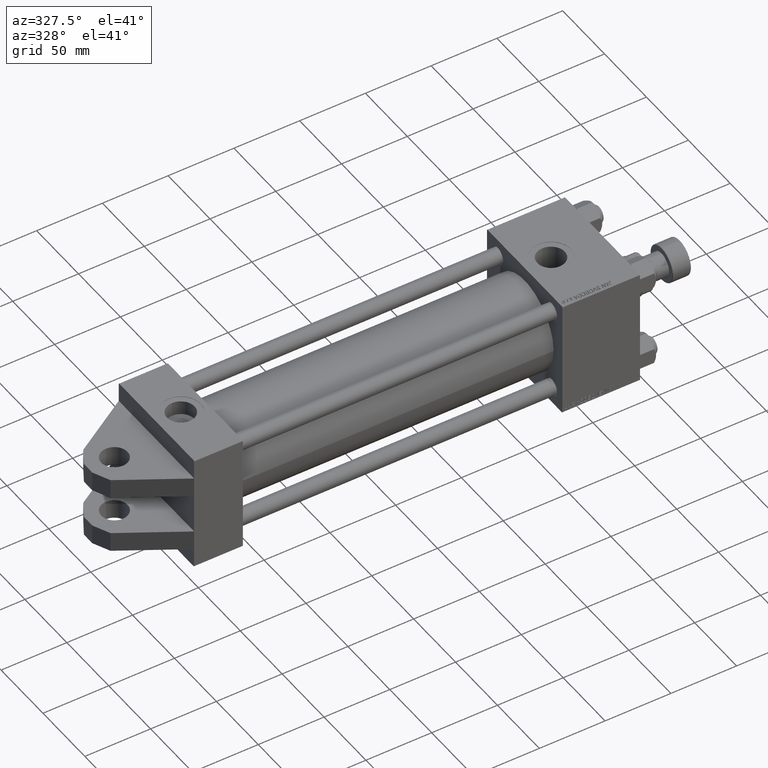
[diagram: clean part render]
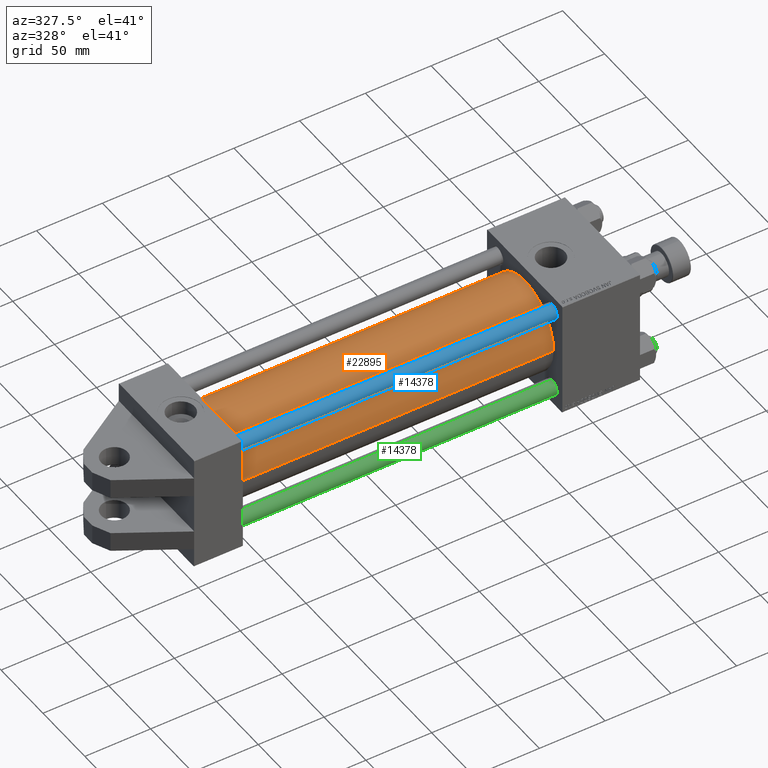
[diagram: same view with three faces highlighted in distinct colors, each labeled with its STEP entity id]
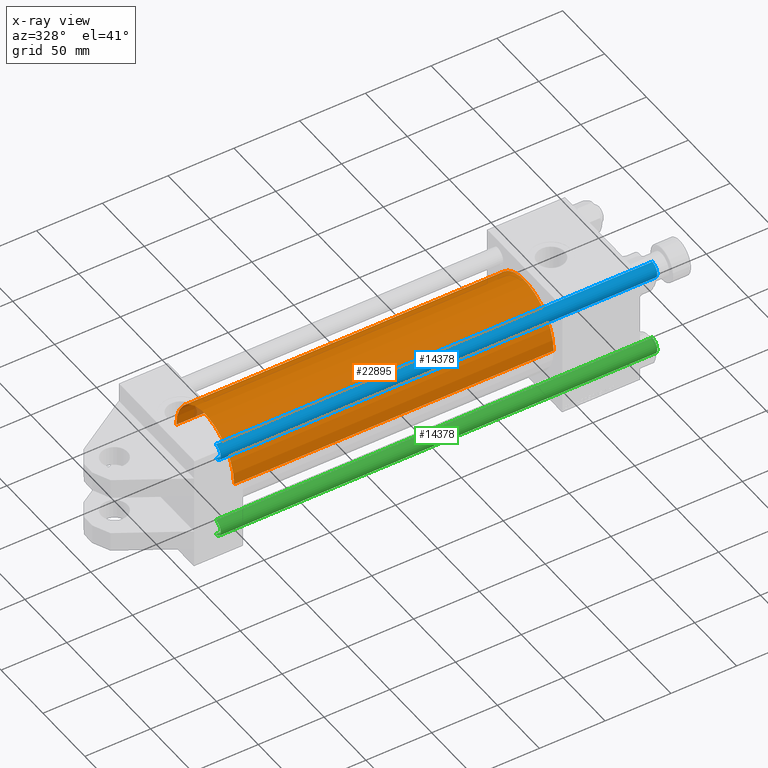
[diagram: x-ray of the same camera — body ghosted, the three highlighted faces saturated]
A machine part, auxiliary view with three faces highlighted in distinct colors.
The next image is the same camera in x-ray (body ghosted, the three faces saturated) — at least one of them is partly hidden behind the body in this view.
Their STEP definitions:

[orange] entity #22895 — the highlighted cylindrical surface (partial cylindrical patch) has radius 34.5 mm, axis along (-1, -0, 0).
#2061 = VECTOR ( 'NONE', #23170, 1000.000000000000000 ) ;
#3689 = DIRECTION ( 'NONE',  ( 1.000000000000000000, -0.000000000000000000, 0.000000000000000000 ) ) ;
#4802 = VERTEX_POINT ( 'NONE', #11994 ) ;
#6223 = ORIENTED_EDGE ( 'NONE', *, *, #50625, .F. ) ;
#8036 = VECTOR ( 'NONE', #35463, 1000.000000000000000 ) ;
#8987 = AXIS2_PLACEMENT_3D ( 'NONE', #50944, #26102, #25846 ) ;
#9993 = EDGE_LOOP ( 'NONE', ( #6223, #26014, #28369, #45645 ) ) ;
#11994 = CARTESIAN_POINT ( 'NONE',  ( 37.00000000000000711, 7.555845051047534515E-16, -34.49999999999999289 ) ) ;
#12700 = CARTESIAN_POINT ( 'NONE',  ( 279.9999999999999432, -3.469446951953614189E-15, 34.49999999999999289 ) ) ;
#13221 = DIRECTION ( 'NONE',  ( 1.000000000000000000, 0.000000000000000000, 0.000000000000000000 ) ) ;
#13951 = CYLINDRICAL_SURFACE ( 'NONE', #8987, 34.49999999999999289 ) ;
#16565 = CARTESIAN_POINT ( 'NONE',  ( 279.9999999999999432, -3.469446951953614189E-15, 34.49999999999999289 ) ) ;
#16744 = CARTESIAN_POINT ( 'NONE',  ( 37.00000000000000711, -3.469446951953614189E-15, 34.49999999999999289 ) ) ;
#19358 = CARTESIAN_POINT ( 'NONE',  ( 279.9999999999999432, 7.555845051047534515E-16, -34.49999999999999289 ) ) ;
#21078 = AXIS2_PLACEMENT_3D ( 'NONE', #39627, #3689, #51512 ) ;
#22671 = FACE_OUTER_BOUND ( 'NONE', #9993, .T. ) ;
#22895 = ADVANCED_FACE ( 'NONE', ( #22671 ), #13951, .T. ) ;
#22953 = CARTESIAN_POINT ( 'NONE',  ( 279.9999999999999432, 7.555845051047534515E-16, -34.49999999999999289 ) ) ;
#23170 = DIRECTION ( 'NONE',  ( -1.000000000000000000, -0.000000000000000000, -0.000000000000000000 ) ) ;
#23473 = CIRCLE ( 'NONE', #38607, 34.49999999999999289 ) ;
#25846 = DIRECTION ( 'NONE',  ( 0.000000000000000000, 0.000000000000000000, 1.000000000000000000 ) ) ;
#25886 = CARTESIAN_POINT ( 'NONE',  ( 279.9999999999999432, -3.469446951953614189E-15, 0.000000000000000000 ) ) ;
#26014 = ORIENTED_EDGE ( 'NONE', *, *, #27056, .F. ) ;
#26102 = DIRECTION ( 'NONE',  ( -1.000000000000000000, -0.000000000000000000, -0.000000000000000000 ) ) ;
#27056 = EDGE_CURVE ( 'NONE', #28309, #33815, #23473, .T. ) ;
#27543 = LINE ( 'NONE', #19358, #8036 ) ;
#28309 = VERTEX_POINT ( 'NONE', #16565 ) ;
#28369 = ORIENTED_EDGE ( 'NONE', *, *, #48370, .T. ) ;
#29331 = DIRECTION ( 'NONE',  ( 0.000000000000000000, 0.000000000000000000, -1.000000000000000000 ) ) ;
#32052 = CIRCLE ( 'NONE', #21078, 34.49999999999999289 ) ;
#33815 = VERTEX_POINT ( 'NONE', #22953 ) ;
#34688 = VERTEX_POINT ( 'NONE', #16744 ) ;
#35463 = DIRECTION ( 'NONE',  ( -1.000000000000000000, -0.000000000000000000, -0.000000000000000000 ) ) ;
#36049 = EDGE_CURVE ( 'NONE', #34688, #4802, #32052, .T. ) ;
#38607 = AXIS2_PLACEMENT_3D ( 'NONE', #25886, #13221, #29331 ) ;
#39627 = CARTESIAN_POINT ( 'NONE',  ( 37.00000000000000711, -3.469446951953614189E-15, 0.000000000000000000 ) ) ;
#45645 = ORIENTED_EDGE ( 'NONE', *, *, #36049, .T. ) ;
#48370 = EDGE_CURVE ( 'NONE', #28309, #34688, #48905, .T. ) ;
#48905 = LINE ( 'NONE', #12700, #2061 ) ;
#50625 = EDGE_CURVE ( 'NONE', #33815, #4802, #27543, .T. ) ;
#50944 = CARTESIAN_POINT ( 'NONE',  ( 279.9999999999999432, -3.469446951953614189E-15, 0.000000000000000000 ) ) ;
#51512 = DIRECTION ( 'NONE',  ( 0.000000000000000000, 0.000000000000000000, 1.000000000000000000 ) ) ;

[blue] entity #14378 — the highlighted cylindrical surface (edge-blend (fillet) strip) has radius 6 mm, axis along (1, 0, 0).
#3773 = VECTOR ( 'NONE', #38193, 1000.000000000000000 ) ;
#3811 = AXIS2_PLACEMENT_3D ( 'NONE', #25862, #38008, #50700 ) ;
#6299 = FACE_OUTER_BOUND ( 'NONE', #17322, .T. ) ;
#6548 = CARTESIAN_POINT ( 'NONE',  ( -6.000000000000000888, 0.000000000000000000, 333.0000000000000000 ) ) ;
#9700 = CARTESIAN_POINT ( 'NONE',  ( -6.000000000000000888, 0.000000000000000000, 0.5000000000000004441 ) ) ;
#10570 = CIRCLE ( 'NONE', #26709, 6.000000000000000888 ) ;
#13113 = DIRECTION ( 'NONE',  ( 1.000000000000000000, 0.000000000000000000, 0.000000000000000000 ) ) ;
#13785 = EDGE_CURVE ( 'NONE', #26047, #42072, #42163, .T. ) ;
#14378 = ADVANCED_FACE ( 'NONE', ( #6299 ), #22419, .T. ) ;
#14438 = CARTESIAN_POINT ( 'NONE',  ( 6.000000000000000888, 7.347880794884120722E-16, 0.5000000000000004441 ) ) ;
#15488 = EDGE_CURVE ( 'NONE', #42072, #42017, #10570, .T. ) ;
#17322 = EDGE_LOOP ( 'NONE', ( #33253, #25091, #24149, #34578 ) ) ;
#18537 = AXIS2_PLACEMENT_3D ( 'NONE', #31616, #43267, #22919 ) ;
#22077 = CARTESIAN_POINT ( 'NONE',  ( 6.000000000000000888, 7.347880794884120722E-16, 333.0000000000000000 ) ) ;
#22134 = LINE ( 'NONE', #6548, #29221 ) ;
#22419 = CYLINDRICAL_SURFACE ( 'NONE', #3811, 6.000000000000000888 ) ;
#22912 = EDGE_CURVE ( 'NONE', #24939, #42017, #22134, .T. ) ;
#22919 = DIRECTION ( 'NONE',  ( 1.000000000000000000, 0.000000000000000000, 0.000000000000000000 ) ) ;
#24149 = ORIENTED_EDGE ( 'NONE', *, *, #15488, .T. ) ;
#24939 = VERTEX_POINT ( 'NONE', #28849 ) ;
#25091 = ORIENTED_EDGE ( 'NONE', *, *, #13785, .T. ) ;
#25862 = CARTESIAN_POINT ( 'NONE',  ( 0.000000000000000000, 0.000000000000000000, 333.0000000000000000 ) ) ;
#26047 = VERTEX_POINT ( 'NONE', #26645 ) ;
#26645 = CARTESIAN_POINT ( 'NONE',  ( 6.000000000000000888, 7.347880794884120722E-16, 332.5000000000001137 ) ) ;
#26709 = AXIS2_PLACEMENT_3D ( 'NONE', #29730, #49059, #13113 ) ;
#28849 = CARTESIAN_POINT ( 'NONE',  ( -6.000000000000000888, 0.000000000000000000, 332.5000000000001137 ) ) ;
#29221 = VECTOR ( 'NONE', #38249, 1000.000000000000000 ) ;
#29730 = CARTESIAN_POINT ( 'NONE',  ( 0.000000000000000000, 0.000000000000000000, 0.5000000000000004441 ) ) ;
#31616 = CARTESIAN_POINT ( 'NONE',  ( 0.000000000000000000, 0.000000000000000000, 332.5000000000001137 ) ) ;
#33253 = ORIENTED_EDGE ( 'NONE', *, *, #35379, .T. ) ;
#34578 = ORIENTED_EDGE ( 'NONE', *, *, #22912, .F. ) ;
#35379 = EDGE_CURVE ( 'NONE', #24939, #26047, #48093, .T. ) ;
#38008 = DIRECTION ( 'NONE',  ( -0.000000000000000000, -0.000000000000000000, -1.000000000000000000 ) ) ;
#38193 = DIRECTION ( 'NONE',  ( -0.000000000000000000, -0.000000000000000000, -1.000000000000000000 ) ) ;
#38249 = DIRECTION ( 'NONE',  ( -0.000000000000000000, -0.000000000000000000, -1.000000000000000000 ) ) ;
#42017 = VERTEX_POINT ( 'NONE', #9700 ) ;
#42072 = VERTEX_POINT ( 'NONE', #14438 ) ;
#42163 = LINE ( 'NONE', #22077, #3773 ) ;
#43267 = DIRECTION ( 'NONE',  ( 0.000000000000000000, 0.000000000000000000, -1.000000000000000000 ) ) ;
#48093 = CIRCLE ( 'NONE', #18537, 6.000000000000000888 ) ;
#49059 = DIRECTION ( 'NONE',  ( -0.000000000000000000, -0.000000000000000000, 1.000000000000000000 ) ) ;
#50700 = DIRECTION ( 'NONE',  ( -1.000000000000000000, 0.000000000000000000, 0.000000000000000000 ) ) ;

[green] entity #14378 — the highlighted cylindrical surface (edge-blend (fillet) strip) has radius 6 mm, axis along (-1, -0, 0).
#3773 = VECTOR ( 'NONE', #38193, 1000.000000000000000 ) ;
#3811 = AXIS2_PLACEMENT_3D ( 'NONE', #25862, #38008, #50700 ) ;
#6299 = FACE_OUTER_BOUND ( 'NONE', #17322, .T. ) ;
#6548 = CARTESIAN_POINT ( 'NONE',  ( -6.000000000000000888, 0.000000000000000000, 333.0000000000000000 ) ) ;
#9700 = CARTESIAN_POINT ( 'NONE',  ( -6.000000000000000888, 0.000000000000000000, 0.5000000000000004441 ) ) ;
#10570 = CIRCLE ( 'NONE', #26709, 6.000000000000000888 ) ;
#13113 = DIRECTION ( 'NONE',  ( 1.000000000000000000, 0.000000000000000000, 0.000000000000000000 ) ) ;
#13785 = EDGE_CURVE ( 'NONE', #26047, #42072, #42163, .T. ) ;
#14378 = ADVANCED_FACE ( 'NONE', ( #6299 ), #22419, .T. ) ;
#14438 = CARTESIAN_POINT ( 'NONE',  ( 6.000000000000000888, 7.347880794884120722E-16, 0.5000000000000004441 ) ) ;
#15488 = EDGE_CURVE ( 'NONE', #42072, #42017, #10570, .T. ) ;
#17322 = EDGE_LOOP ( 'NONE', ( #33253, #25091, #24149, #34578 ) ) ;
#18537 = AXIS2_PLACEMENT_3D ( 'NONE', #31616, #43267, #22919 ) ;
#22077 = CARTESIAN_POINT ( 'NONE',  ( 6.000000000000000888, 7.347880794884120722E-16, 333.0000000000000000 ) ) ;
#22134 = LINE ( 'NONE', #6548, #29221 ) ;
#22419 = CYLINDRICAL_SURFACE ( 'NONE', #3811, 6.000000000000000888 ) ;
#22912 = EDGE_CURVE ( 'NONE', #24939, #42017, #22134, .T. ) ;
#22919 = DIRECTION ( 'NONE',  ( 1.000000000000000000, 0.000000000000000000, 0.000000000000000000 ) ) ;
#24149 = ORIENTED_EDGE ( 'NONE', *, *, #15488, .T. ) ;
#24939 = VERTEX_POINT ( 'NONE', #28849 ) ;
#25091 = ORIENTED_EDGE ( 'NONE', *, *, #13785, .T. ) ;
#25862 = CARTESIAN_POINT ( 'NONE',  ( 0.000000000000000000, 0.000000000000000000, 333.0000000000000000 ) ) ;
#26047 = VERTEX_POINT ( 'NONE', #26645 ) ;
#26645 = CARTESIAN_POINT ( 'NONE',  ( 6.000000000000000888, 7.347880794884120722E-16, 332.5000000000001137 ) ) ;
#26709 = AXIS2_PLACEMENT_3D ( 'NONE', #29730, #49059, #13113 ) ;
#28849 = CARTESIAN_POINT ( 'NONE',  ( -6.000000000000000888, 0.000000000000000000, 332.5000000000001137 ) ) ;
#29221 = VECTOR ( 'NONE', #38249, 1000.000000000000000 ) ;
#29730 = CARTESIAN_POINT ( 'NONE',  ( 0.000000000000000000, 0.000000000000000000, 0.5000000000000004441 ) ) ;
#31616 = CARTESIAN_POINT ( 'NONE',  ( 0.000000000000000000, 0.000000000000000000, 332.5000000000001137 ) ) ;
#33253 = ORIENTED_EDGE ( 'NONE', *, *, #35379, .T. ) ;
#34578 = ORIENTED_EDGE ( 'NONE', *, *, #22912, .F. ) ;
#35379 = EDGE_CURVE ( 'NONE', #24939, #26047, #48093, .T. ) ;
#38008 = DIRECTION ( 'NONE',  ( -0.000000000000000000, -0.000000000000000000, -1.000000000000000000 ) ) ;
#38193 = DIRECTION ( 'NONE',  ( -0.000000000000000000, -0.000000000000000000, -1.000000000000000000 ) ) ;
#38249 = DIRECTION ( 'NONE',  ( -0.000000000000000000, -0.000000000000000000, -1.000000000000000000 ) ) ;
#42017 = VERTEX_POINT ( 'NONE', #9700 ) ;
#42072 = VERTEX_POINT ( 'NONE', #14438 ) ;
#42163 = LINE ( 'NONE', #22077, #3773 ) ;
#43267 = DIRECTION ( 'NONE',  ( 0.000000000000000000, 0.000000000000000000, -1.000000000000000000 ) ) ;
#48093 = CIRCLE ( 'NONE', #18537, 6.000000000000000888 ) ;
#49059 = DIRECTION ( 'NONE',  ( -0.000000000000000000, -0.000000000000000000, 1.000000000000000000 ) ) ;
#50700 = DIRECTION ( 'NONE',  ( -1.000000000000000000, 0.000000000000000000, 0.000000000000000000 ) ) ;